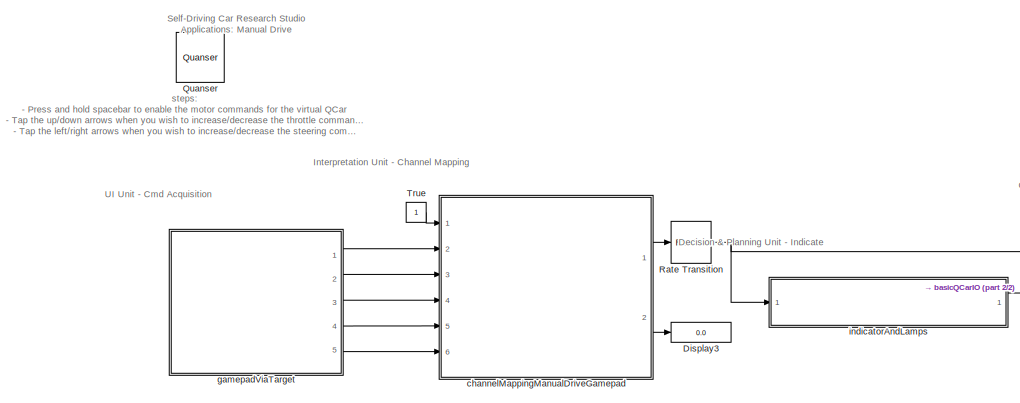
[diagram: root canvas - part 1/2, left side, full height]
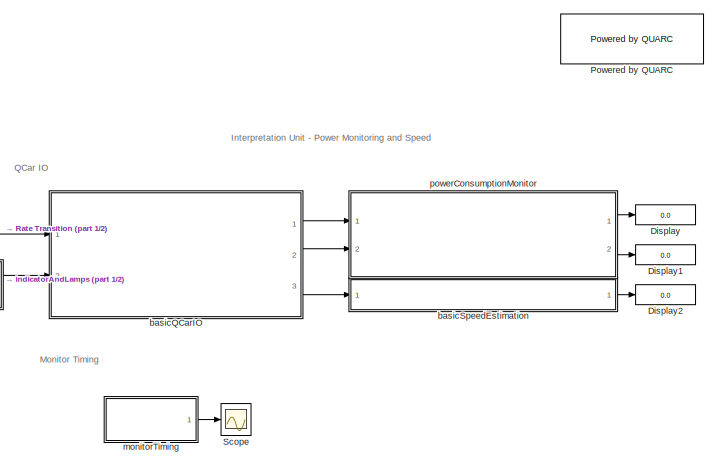
[diagram: root canvas - part 2/2, right side, full height]
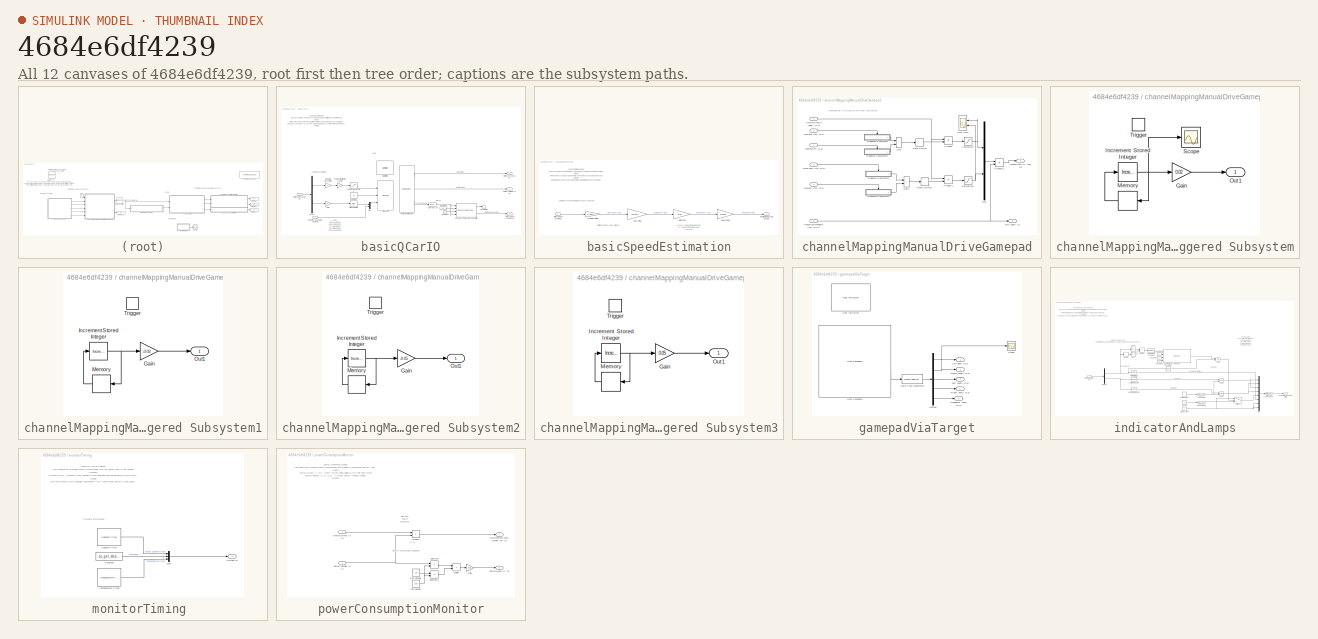
[diagram: thumbnail index - all 12 canvases of the model, root first then tree order]
MODEL slx_4684e6df4239
KIND model
CONFIG AbsTol = auto
CONFIG EnableMultiTasking = on
CONFIG FixedStep = 1/100
CONFIG MaxStep = auto
CONFIG MinStep = auto
CONFIG RelTol = 1e-3
CONFIG SampleTimeConstraint = Unconstrained
CONFIG Solver = ode2
CONFIG SolverName = ode2
CONFIG StartTime = 0.0
CONFIG StopTime = inf
BLOCK [Display] Display
  Decimation = 0.5/qc_get_step_size
  Ports = [1]
BLOCK [Display] Display1
  Decimation = 0.5/qc_get_step_size
  Ports = [1]
BLOCK [Display] Display2
  Decimation = 0.5/qc_get_step_size
  Ports = [1]
BLOCK [Display] Display3
  Decimation = 0.1/qc_get_step_size
  Ports = [1]
BLOCK [Reference] Powered by QUARC  REF=quarc_library/Logos/Powered by QUARC
  Ports = []
  SourceBlock = quarc_library/Logos/Powered by QUARC
  SourceProductName = QUARC Targets
  SourceType = Powered by QUARC
BLOCK [Reference] Quanser  REF=quarc_library/Logos/Quanser
  Ports = []
  SourceBlock = quarc_library/Logos/Quanser
  SourceProductName = QUARC Targets
  SourceType = Powered by Quanser
BLOCK [RateTransition] Rate Transition
BLOCK [Scope] Scope
  Floating = off
  NumInputPorts = 1
  Ports = [1]
  ScopeSpecificationString = Simulink.scopes.TimeScopeBlockCfg('CurrentConfiguration', extmgr.ConfigurationSet(extmgr.Configuration('Core','General UI',true),extmgr.Configuration('Core','Source UI',true),extmgr.Configuration('Sources','WiredSimulink',true),extmgr.Configuration('Visuals','Time Domain',true,'SerializedDisplays',{struct('MinYLimReal','-0.00011','MaxYLimReal','0.00378','YLabelReal','','MinYLimMag','0.00000','MaxY...<+1426ch>
BLOCK [Constant] True
BLOCK [SubSystem] basicQCarIO
  Ports = [2, 3]
BLOCK [Constant] basicQCarIO/Constant1
BLOCK [Constant] basicQCarIO/Constant2
  Value = 25
BLOCK [Demux] basicQCarIO/Demux
  Outputs = 2
  Ports = [1, 2]
BLOCK [Gain] basicQCarIO/Gain
  Gain = -1
BLOCK [Reference] basicQCarIO/HIL Initialize  REF=quarc_library/Data Acquisition/Generic/Configuration/HIL Initialize
  AttributesFormatString = %<object_name> (%<board_type>-%<board_number>)
  Ports = []
  SourceBlock = quarc_library/Data Acquisition/Generic/Configuration/HIL Initialize
  SourceProductName = QUARC Targets
  SourceType = HIL Initialize
  UserDataPersistent = on
BLOCK [Reference] basicQCarIO/HIL Read Timebase  REF=quarc_library/Data Acquisition/Generic/Timebases/HIL Read
Timebase
  AttributesFormatString = (%<object_name>)
  Ports = [0, 3]
  SourceBlock = quarc_library/Data Acquisition/Generic/Timebases/HIL Read\nTimebase
  SourceProductName = QUARC Targets
  SourceType = HIL Read Timebase
  UserDataPersistent = on
BLOCK [Reference] basicQCarIO/HIL Write  REF=quarc_library/Data Acquisition/Generic/Immediate I//O/HIL Write
  AttributesFormatString = (%<object_name>)
  Ports = [3]
  SourceBlock = quarc_library/Data Acquisition/Generic/Immediate I//O/HIL Write
  SourceProductName = QUARC Targets
  SourceType = HIL Write
  UserDataPersistent = on
BLOCK [Mux] basicQCarIO/Mux
  DisplayOption = bar
  Inputs = 2
  Ports = [2, 1]
BLOCK [Reference] basicQCarIO/Second-Order Low-Pass Filter  REF=quarc_library/Continuous/Second-Order
Low-Pass Filter
  Ports = [4, 2]
  SourceBlock = quarc_library/Continuous/Second-Order\nLow-Pass Filter
  SourceProductName = QUARC Targets
  SourceType = Second-Order Low-Pass Filter
BLOCK [Bias] basicQCarIO/Steering Bias
  Bias = 0.0
  SaturateOnIntegerOverflow = off
BLOCK [Terminator] basicQCarIO/Terminator
BLOCK [Reference] basicQCarIO/Unwrap 2^24  REF=quarc_library/Discontinuities/Inverse
Modulus
  Ports = [1, 1]
  SourceBlock = quarc_library/Discontinuities/Inverse\nModulus
  SourceProductName = QUARC Targets
  SourceType = Inverse Modulus
BLOCK [Outport] basicQCarIO/batteryVoltage (V) [1]
  Port = 2
  VectorParamsAs1DForOutWhenUnconnected = off
BLOCK [Constant] basicQCarIO/coast ON
  Value = 0
BLOCK [Saturate] basicQCarIO/command saturation
  LowerLimit = -0.20
  UpperLimit = 0.20
BLOCK [Gain] basicQCarIO/direction convention
  Gain = -1
BLOCK [Inport] basicQCarIO/indicatorAndLamps (bool) [8]
  Port = 2
BLOCK [Inport] basicQCarIO/motorCmd (%, rad) [2]
BLOCK [Outport] basicQCarIO/motorCurrent (A) [1]
  VectorParamsAs1DForOutWhenUnconnected = off
BLOCK [Outport] basicQCarIO/motorSpeed (counts//s) [1]
  Port = 3
  VectorParamsAs1DForOutWhenUnconnected = off
BLOCK [Gain] basicQCarIO/scale output to max range
  Gain = 0.2
BLOCK [SubSystem] basicSpeedEstimation
  Ports = [1, 1]
BLOCK [Gain] basicSpeedEstimation/counts to rotations
  Gain = 1/720/4
BLOCK [Gain] basicSpeedEstimation/gear ratios
  Gain = (13*19)/(70*37)
BLOCK [Outport] basicSpeedEstimation/longitudinalCarSpeed (m//s)
  VectorParamsAs1DForOutWhenUnconnected = off
BLOCK [Inport] basicSpeedEstimation/motorSpeed (counts//s)
BLOCK [Gain] basicSpeedEstimation/rot//s to rad//s
  Gain = 2*pi
BLOCK [Gain] basicSpeedEstimation/wheel radius
  Gain = 0.0342
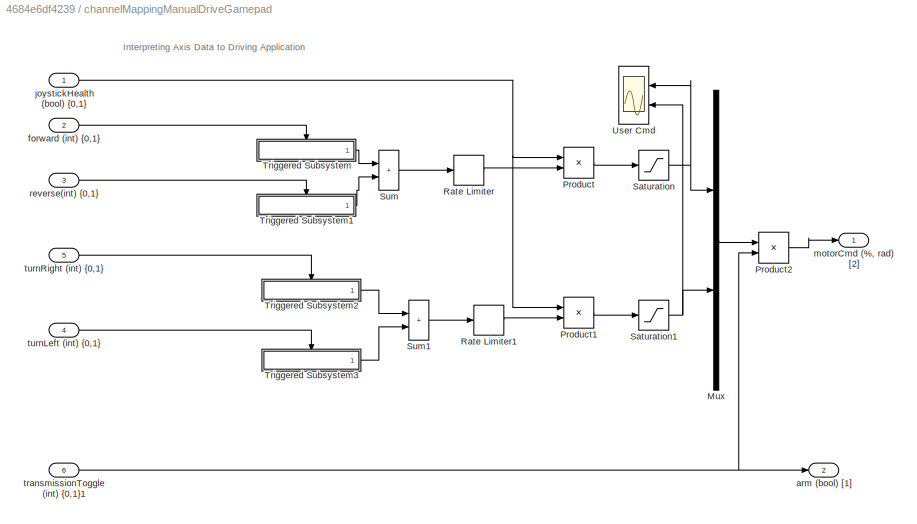
BLOCK [SubSystem] channelMappingManualDriveGamepad
  Ports = [6, 2]
BLOCK [Mux] channelMappingManualDriveGamepad/Mux
  DisplayOption = bar
  Inputs = 2
  Ports = [2, 1]
BLOCK [Product] channelMappingManualDriveGamepad/Product
  Ports = [2, 1]
BLOCK [Product] channelMappingManualDriveGamepad/Product1
  Ports = [2, 1]
BLOCK [Product] channelMappingManualDriveGamepad/Product2
  Ports = [2, 1]
BLOCK [RateLimiter] channelMappingManualDriveGamepad/Rate Limiter
  FallingSlewLimit = -0.2
  RisingSlewLimit = 0.2
  SampleTimeMode = inherited
BLOCK [RateLimiter] channelMappingManualDriveGamepad/Rate Limiter1
  FallingSlewLimit = -0.2
  RisingSlewLimit = 0.2
  SampleTimeMode = inherited
BLOCK [Saturate] channelMappingManualDriveGamepad/Saturation
  LowerLimit = -1
  UpperLimit = 1
BLOCK [Saturate] channelMappingManualDriveGamepad/Saturation1
BLOCK [Sum] channelMappingManualDriveGamepad/Sum
  IconShape = rectangular
  Ports = [2, 1]
BLOCK [Sum] channelMappingManualDriveGamepad/Sum1
  IconShape = rectangular
  Ports = [2, 1]
BLOCK [SubSystem] channelMappingManualDriveGamepad/Triggered Subsystem
  Ports = [0, 1, 0, 1]
  TreatAsAtomicUnit = on
BLOCK [Gain] channelMappingManualDriveGamepad/Triggered Subsystem/Gain
  Gain = 0.02
BLOCK [Reference] channelMappingManualDriveGamepad/Triggered Subsystem/Increment Stored Integer  REF=simulink/Additional Math
& Discrete/Additional Math:
Increment - Decrement/Increment
Stored Integer
  Ports = [1, 1]
  SourceBlock = simulink/Additional Math\n& Discrete/Additional Math:\nIncrement - Decrement/Increment\nStored Integer
  SourceType = Stored Integer Value Increment
BLOCK [Memory] channelMappingManualDriveGamepad/Triggered Subsystem/Memory
  InheritSampleTime = on
BLOCK [Outport] channelMappingManualDriveGamepad/Triggered Subsystem/Out1
BLOCK [Scope] channelMappingManualDriveGamepad/Triggered Subsystem/Scope
  Floating = off
  NumInputPorts = 1
  Ports = [1]
  ScopeSpecificationString = Simulink.scopes.TimeScopeBlockCfg('CurrentConfiguration', extmgr.ConfigurationSet(extmgr.Configuration('Core','General UI',true),extmgr.Configuration('Core','Source UI',true),extmgr.Configuration('Sources','WiredSimulink',true,'DataLoggingVariableName','ScopeData3'),extmgr.Configuration('Visuals','Time Domain',true,'SerializedDisplays',{struct('MinYLimReal','19.75','MaxYLimReal','22.25','YLabelRea...<+1421ch>
BLOCK [TriggerPort] channelMappingManualDriveGamepad/Triggered Subsystem/Trigger
  PortDimensions = 1
  Ports = []
  StatesWhenEnabling = held
  VariantControl = (inherit)
BLOCK [SubSystem] channelMappingManualDriveGamepad/Triggered Subsystem1
  Ports = [0, 1, 0, 1]
  TreatAsAtomicUnit = on
BLOCK [Gain] channelMappingManualDriveGamepad/Triggered Subsystem1/Gain
  Gain = -0.02
BLOCK [Reference] channelMappingManualDriveGamepad/Triggered Subsystem1/Increment Stored Integer  REF=simulink/Additional Math
& Discrete/Additional Math:
Increment - Decrement/Increment
Stored Integer
  Ports = [1, 1]
  SourceBlock = simulink/Additional Math\n& Discrete/Additional Math:\nIncrement - Decrement/Increment\nStored Integer
  SourceType = Stored Integer Value Increment
BLOCK [Memory] channelMappingManualDriveGamepad/Triggered Subsystem1/Memory
  InheritSampleTime = on
BLOCK [Outport] channelMappingManualDriveGamepad/Triggered Subsystem1/Out1
BLOCK [TriggerPort] channelMappingManualDriveGamepad/Triggered Subsystem1/Trigger
  PortDimensions = 1
  Ports = []
  StatesWhenEnabling = held
  VariantControl = (inherit)
BLOCK [SubSystem] channelMappingManualDriveGamepad/Triggered Subsystem2
  Ports = [0, 1, 0, 1]
  TreatAsAtomicUnit = on
BLOCK [Gain] channelMappingManualDriveGamepad/Triggered Subsystem2/Gain
  Gain = -0.05
BLOCK [Reference] channelMappingManualDriveGamepad/Triggered Subsystem2/Increment Stored Integer  REF=simulink/Additional Math
& Discrete/Additional Math:
Increment - Decrement/Increment
Stored Integer
  Ports = [1, 1]
  SourceBlock = simulink/Additional Math\n& Discrete/Additional Math:\nIncrement - Decrement/Increment\nStored Integer
  SourceType = Stored Integer Value Increment
BLOCK [Memory] channelMappingManualDriveGamepad/Triggered Subsystem2/Memory
  InheritSampleTime = on
BLOCK [Outport] channelMappingManualDriveGamepad/Triggered Subsystem2/Out1
BLOCK [TriggerPort] channelMappingManualDriveGamepad/Triggered Subsystem2/Trigger
  PortDimensions = 1
  Ports = []
  StatesWhenEnabling = held
  VariantControl = (inherit)
BLOCK [SubSystem] channelMappingManualDriveGamepad/Triggered Subsystem3
  Ports = [0, 1, 0, 1]
  TreatAsAtomicUnit = on
BLOCK [Gain] channelMappingManualDriveGamepad/Triggered Subsystem3/Gain
  Gain = 0.05
BLOCK [Reference] channelMappingManualDriveGamepad/Triggered Subsystem3/Increment Stored Integer  REF=simulink/Additional Math
& Discrete/Additional Math:
Increment - Decrement/Increment
Stored Integer
  Ports = [1, 1]
  SourceBlock = simulink/Additional Math\n& Discrete/Additional Math:\nIncrement - Decrement/Increment\nStored Integer
  SourceType = Stored Integer Value Increment
BLOCK [Memory] channelMappingManualDriveGamepad/Triggered Subsystem3/Memory
  InheritSampleTime = on
BLOCK [Outport] channelMappingManualDriveGamepad/Triggered Subsystem3/Out1
BLOCK [TriggerPort] channelMappingManualDriveGamepad/Triggered Subsystem3/Trigger
  PortDimensions = 1
  Ports = []
  StatesWhenEnabling = held
  VariantControl = (inherit)
BLOCK [Scope] channelMappingManualDriveGamepad/User Cmd
  Floating = off
  NumInputPorts = 2
  Ports = [2]
  ScopeSpecificationString = Simulink.scopes.TimeScopeBlockCfg('CurrentConfiguration', extmgr.ConfigurationSet(extmgr.Configuration('Core','General UI',true),extmgr.Configuration('Core','Source UI',true),extmgr.Configuration('Sources','WiredSimulink',true,'DataLoggingVariableName','ScopeData1'),extmgr.Configuration('Visuals','Time Domain',true,'SerializedDisplays',{struct('MinYLimReal','-3','MaxYLimReal','3','YLabelReal','%',...<+2060ch>
BLOCK [Outport] channelMappingManualDriveGamepad/arm (bool) [1]
  Port = 2
  VectorParamsAs1DForOutWhenUnconnected = off
BLOCK [Inport] channelMappingManualDriveGamepad/forward (int) {0,1}
  Port = 2
BLOCK [Inport] channelMappingManualDriveGamepad/joystickHealth (bool) {0,1}
BLOCK [Outport] channelMappingManualDriveGamepad/motorCmd (%, rad) [2]
  VectorParamsAs1DForOutWhenUnconnected = off
BLOCK [Inport] channelMappingManualDriveGamepad/reverse(int) {0,1}
  Port = 3
BLOCK [Inport] channelMappingManualDriveGamepad/transmissionToggle (int) {0,1}1
  Port = 6
BLOCK [Inport] channelMappingManualDriveGamepad/turnLeft (int) {0,1}
  Port = 4
BLOCK [Inport] channelMappingManualDriveGamepad/turnRight (int) {0,1}
  Port = 5
BLOCK [SubSystem] gamepadViaTarget
  Ports = [0, 5]
BLOCK [DataTypeConversion] gamepadViaTarget/Data Type Conversion
  OutDataTypeStr = double
  RndMeth = Floor
  SaturateOnIntegerOverflow = off
BLOCK [Demux] gamepadViaTarget/Demux
  Outputs = 5
  Ports = [1, 5]
BLOCK [Outport] gamepadViaTarget/Down  (bool) {0,1}
  Port = 2
  VectorParamsAs1DForOutWhenUnconnected = off
BLOCK [Reference] gamepadViaTarget/Host Initialize  REF=quarc_library/Devices/Peripherals/Host/Host Initialize
  Ports = [0, 2]
  SourceBlock = quarc_library/Devices/Peripherals/Host/Host Initialize
  SourceProductName = QUARC Targets
  SourceType = Host Initialize
BLOCK [Reference] gamepadViaTarget/Host Keyboard  REF=quarc_library/Devices/Peripherals/Host/Host Keyboard
  Ports = [0, 2]
  SourceBlock = quarc_library/Devices/Peripherals/Host/Host Keyboard
  SourceProductName = QUARC Targets
  SourceType = Host Keyboard
BLOCK [Outport] gamepadViaTarget/Left (bool) {0,1}
  Port = 3
  VectorParamsAs1DForOutWhenUnconnected = off
BLOCK [Outport] gamepadViaTarget/Right (bool) {0,1}
  Port = 4
  VectorParamsAs1DForOutWhenUnconnected = off
BLOCK [Scope] gamepadViaTarget/Scope
  Floating = off
  NumInputPorts = 1
  Ports = [1]
  ScopeSpecificationString = Simulink.scopes.TimeScopeBlockCfg('CurrentConfiguration', extmgr.ConfigurationSet(extmgr.Configuration('Core','General UI',true),extmgr.Configuration('Core','Source UI',true),extmgr.Configuration('Sources','WiredSimulink',true,'DataLoggingVariableName','ScopeData1'),extmgr.Configuration('Visuals','Time Domain',true,'SerializedDisplays',{struct('MinYLimReal','-1.00000','MaxYLimReal','1.00000','YLab...<+1401ch>
BLOCK [Outport] gamepadViaTarget/SpaceBar (bool) {0,1}
  Port = 5
  VectorParamsAs1DForOutWhenUnconnected = off
BLOCK [Outport] gamepadViaTarget/Up (bool) {0,1}
  VectorParamsAs1DForOutWhenUnconnected = off
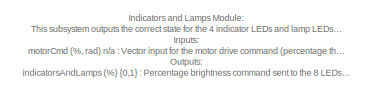
[diagram: indicatorAndLamps - part 1/2, top left region]
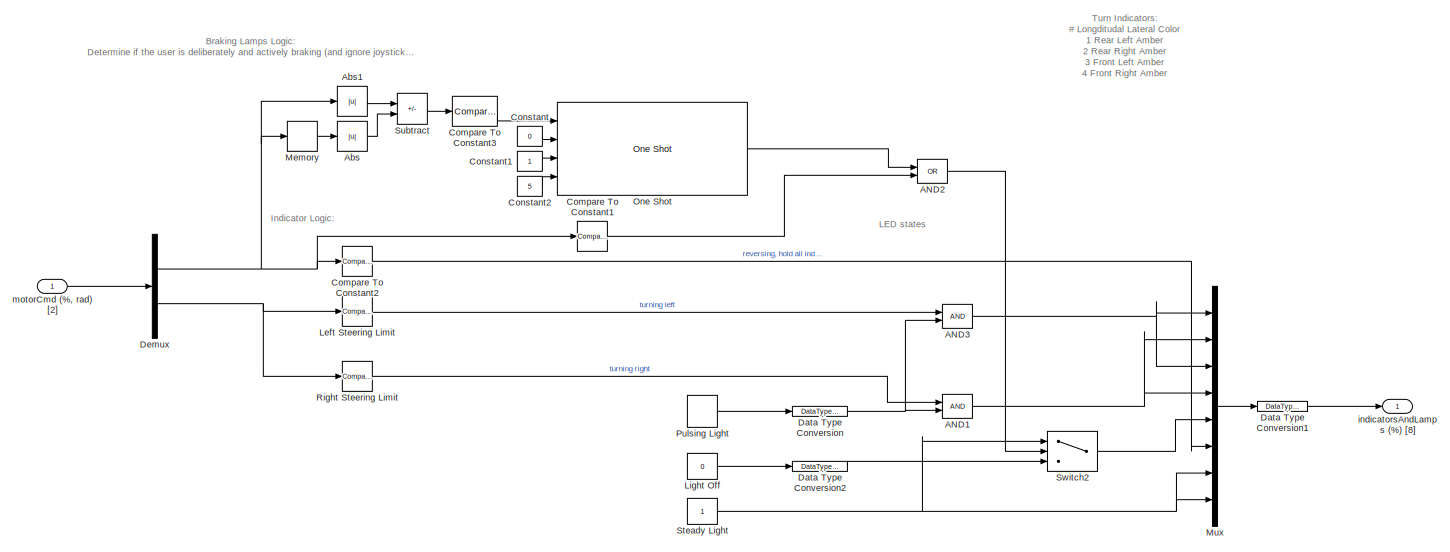
[diagram: indicatorAndLamps - part 2/2, full width, middle band]
BLOCK [SubSystem] indicatorAndLamps
  Ports = [1, 1]
BLOCK [Logic] indicatorAndLamps/AND1
  AllPortsSameDT = off
  IconShape = distinctive
  OutDataTypeStr = boolean
  Ports = [2, 1]
BLOCK [Logic] indicatorAndLamps/AND2
  AllPortsSameDT = off
  IconShape = distinctive
  Operator = OR
  OutDataTypeStr = boolean
  Ports = [2, 1]
BLOCK [Logic] indicatorAndLamps/AND3
  AllPortsSameDT = off
  IconShape = distinctive
  OutDataTypeStr = boolean
  Ports = [2, 1]
BLOCK [Abs] indicatorAndLamps/Abs
  SaturateOnIntegerOverflow = off
BLOCK [Abs] indicatorAndLamps/Abs1
  SaturateOnIntegerOverflow = off
BLOCK [Reference] indicatorAndLamps/Compare To Constant1  REF=simulink/Logic and Bit
Operations/Compare
To Constant
  Ports = [1, 1]
  SourceBlock = simulink/Logic and Bit\nOperations/Compare\nTo Constant
  SourceType = Compare To Constant
BLOCK [Reference] indicatorAndLamps/Compare To Constant2  REF=simulink/Logic and Bit
Operations/Compare
To Constant
  Ports = [1, 1]
  SourceBlock = simulink/Logic and Bit\nOperations/Compare\nTo Constant
  SourceType = Compare To Constant
BLOCK [Reference] indicatorAndLamps/Compare To Constant3  REF=simulink/Logic and Bit
Operations/Compare
To Constant
  Ports = [1, 1]
  SourceBlock = simulink/Logic and Bit\nOperations/Compare\nTo Constant
  SourceType = Compare To Constant
BLOCK [Constant] indicatorAndLamps/Constant
  Value = 0
BLOCK [Constant] indicatorAndLamps/Constant1
BLOCK [Constant] indicatorAndLamps/Constant2
  Value = 5
BLOCK [DataTypeConversion] indicatorAndLamps/Data Type Conversion
  RndMeth = Floor
  SaturateOnIntegerOverflow = off
BLOCK [DataTypeConversion] indicatorAndLamps/Data Type Conversion1
  RndMeth = Floor
  SaturateOnIntegerOverflow = off
BLOCK [DataTypeConversion] indicatorAndLamps/Data Type Conversion2
  RndMeth = Floor
  SaturateOnIntegerOverflow = off
BLOCK [Demux] indicatorAndLamps/Demux
  Outputs = 2
  Ports = [1, 2]
BLOCK [Reference] indicatorAndLamps/Left Steering Limit  REF=simulink/Logic and Bit
Operations/Compare
To Constant
  Ports = [1, 1]
  SourceBlock = simulink/Logic and Bit\nOperations/Compare\nTo Constant
  SourceType = Compare To Constant
BLOCK [Constant] indicatorAndLamps/Light Off
  OutDataTypeStr = boolean
  Value = 0
BLOCK [Memory] indicatorAndLamps/Memory
BLOCK [Mux] indicatorAndLamps/Mux
  DisplayOption = bar
  Inputs = 8
  Ports = [8, 1]
BLOCK [Reference] indicatorAndLamps/One Shot  REF=quarc_library/Discontinuities/One Shot
  Ports = [4, 1]
  SourceBlock = quarc_library/Discontinuities/One Shot
  SourceProductName = QUARC Targets
  SourceType = One Shot
BLOCK [DiscretePulseGenerator] indicatorAndLamps/Pulsing Light
  Period = 0.5/qc_get_step_size
  Ports = [0, 1]
  PulseWidth = 0.5/2/qc_get_step_size
  SampleTime = qc_get_step_size
BLOCK [Reference] indicatorAndLamps/Right Steering Limit  REF=simulink/Logic and Bit
Operations/Compare
To Constant
  Ports = [1, 1]
  SourceBlock = simulink/Logic and Bit\nOperations/Compare\nTo Constant
  SourceType = Compare To Constant
BLOCK [Constant] indicatorAndLamps/Steady Light
  OutDataTypeStr = boolean
BLOCK [Sum] indicatorAndLamps/Subtract
  IconShape = rectangular
  Inputs = +-
  Ports = [2, 1]
BLOCK [Switch] indicatorAndLamps/Switch2
  Criteria = u2 > Threshold
  InputSameDT = off
  SaturateOnIntegerOverflow = off
BLOCK [Outport] indicatorAndLamps/indicatorsAndLamps (%) [8]
  VectorParamsAs1DForOutWhenUnconnected = off
BLOCK [Inport] indicatorAndLamps/motorCmd (%, rad) [2]
BLOCK [SubSystem] monitorTiming 
  Ports = [0, 1]
BLOCK [Reference] monitorTiming /Computation Time  REF=quarc_library/Sources/Time/Computation Time
  Ports = [0, 1]
  SourceBlock = quarc_library/Sources/Time/Computation Time
  SourceProductName = QUARC Targets
  SourceType = Computation Time
BLOCK [Constant] monitorTiming /Constant
  Value = qc_get_step_size
BLOCK [Mux] monitorTiming /Mux
  DisplayOption = bar
  Inputs = 3
  Ports = [3, 1]
BLOCK [Reference] monitorTiming /Sample Time  REF=quarc_library/Sources/Time/Sample Time
  Ports = [0, 1]
  Priority = -99
  SourceBlock = quarc_library/Sources/Time/Sample Time
  SourceProductName = QUARC Targets
  SourceType = Sample Time
BLOCK [Outport] monitorTiming /timing (s)
  VectorParamsAs1DForOutWhenUnconnected = off
BLOCK [SubSystem] powerConsumptionMonitor
  Ports = [2, 2]
BLOCK [Product] powerConsumptionMonitor/Divide
  Inputs = */
  Ports = [2, 1]
BLOCK [Gain] powerConsumptionMonitor/Gain
  Gain = 100
BLOCK [Product] powerConsumptionMonitor/Product
  Ports = [2, 1]
BLOCK [Sum] powerConsumptionMonitor/Subtract
  IconShape = rectangular
  Inputs = +-
  Ports = [2, 1]
BLOCK [Sum] powerConsumptionMonitor/Subtract1
  IconShape = rectangular
  Inputs = +-
  Ports = [2, 1]
BLOCK [Outport] powerConsumptionMonitor/batteryLevel (%) [1]
  Port = 2
  VectorParamsAs1DForOutWhenUnconnected = off
BLOCK [Inport] powerConsumptionMonitor/batteryVoltage (V) [1]
  Port = 2
BLOCK [Constant] powerConsumptionMonitor/max voltage
  Value = 12.6
BLOCK [Constant] powerConsumptionMonitor/min voltage
  Value = 10.5
BLOCK [Inport] powerConsumptionMonitor/motorCurrent (A) [1]
BLOCK [Outport] powerConsumptionMonitor/motorPowerConsumption (W) [1]
  VectorParamsAs1DForOutWhenUnconnected = off
ANNOTATION (root): Self-Driving Car Research Studio Applications: Manual Drive
ANNOTATION (root): Decision & Planning Unit - Indicate
ANNOTATION (root): Interpretation Unit - Channel Mapping
ANNOTATION (root): Interpretation Unit - Power Monitoring and Speed
ANNOTATION (root): Monitor Timing
ANNOTATION (root): QCar IO
ANNOTATION (root): UI Unit - Cmd Acquisition
ANNOTATION (root): steps: - Press and hold spacebar to enable the motor commands for the virtual QCar - Tap the up/down arrows when you wish to increase/decrease the throttle command - Tap the left/right arrows when you wish to increase/decrease the steering commands
ANNOTATION basicQCarIO: basicQCarIO Module: This subsystem provides the core and basic I/O capabilities to read data from and write data to the QCar platform. The HIL Initialize block configures the IO settings, and the HIL Write and Read blocks are used for the actual IO. Inputs: motorCmd (%, rad) n/a : Vector input for the motor drive command (percentage throttle) as well as steering command (in rad) indicatorsAndLamps...<+373ch>
ANNOTATION basicQCarIO: LEDs: 1. Back Left Amber 2. Back Right Amber 3. Front Left Amber 4. Front Right Amber 5. Brake Lights Red 6. Reverse White 7. Left Headlamps White 8. Right Headlamps White
ANNOTATION basicQCarIO: Command Conditioning
ANNOTATION basicQCarIO: Filtering
ANNOTATION basicQCarIO: HIL I/O
ANNOTATION basicSpeedEstimation: (Diff. pinion*pinion)/(Spur*Diff. spur)
ANNOTATION basicSpeedEstimation: speedEstimation Module: This subsystem converts the motor speed measurements in counts/s to a useful longitudinal car speed in m/s. Inputs: motorSpeed (counts/s) n/a : Drive motor speed measured using an encoder Outputs: longitudinalCarSpeed (m/s) n/a : The platform's longitudinal speed (along the front-rear axis direction)
ANNOTATION basicSpeedEstimation: Estimate car speed from motor encoder counts rate
ANNOTATION basicSpeedEstimation: v = 2*pi*r * omega (if omega is in rot/s) v = r * omega (if omega is in rad/s) r = 0.0342 m
ANNOTATION channelMappingManualDriveGamepad: Interpreting Axis Data to Driving Application
ANNOTATION indicatorAndLamps: Indicators and Lamps Module: This subsystem outputs the correct state for the 4 indicator LEDs and lamp LEDs based on the motor drive and steering commands for the QCar platform. Inputs: motorCmd (%, rad) n/a : Vector input for the motor drive command (percentage throttle) as well as steering command (in rad) Outputs: indicatorsAndLamps (%) {0,1} : Percentage brightness command sent to the 8 LEDs ...<+388ch>
ANNOTATION indicatorAndLamps: Turn Indicators: # Longditudal Lateral Color 1 Rear Left Amber 2 Rear Right Amber 3 Front Left Amber 4 Front Right Amber Lamps: # Longditudal Lateral Color 5 Rear Left Red 6 Rear Right Red 7 Front Left White 8 Front Right White
ANNOTATION indicatorAndLamps: Braking Lamps Logic: Determine if the user is deliberately and actively braking (and ignore joystick jitter and noise)
ANNOTATION indicatorAndLamps: Indicator Logic:
ANNOTATION indicatorAndLamps: LED states
ANNOTATION monitorTiming : monitorTiming Module: This subsystem provides three timing signals for any given rate in your model. Outputs: timing (s) n/a : Sample time, sample time reference and computation time in seconds. Usage: Set the 'Sample time (seconds)' parameter in all three blocks below to the same number. This will provide the actual sample time at each time step, the reference sample time that is being targeted a...<+103ch>
ANNOTATION monitorTiming : Timing Performance
ANNOTATION powerConsumptionMonitor: Power Monitoring Module: This subsystem monitors power consumption and provides a percentage battery remaining indicator. Inputs: motorCurrent (A) n/a : Motor current being pulled by the main drive motor batteryVoltage (V) {0, 12.6} : Current battery voltage reading Outputs: motorPowerConsumption (W) n/a : Current power in Watts being pulled by the main drive motor batteryLevel (%) {0,1} : Percent...<+144ch>
ANNOTATION powerConsumptionMonitor: Battery percentage calculation
ANNOTATION powerConsumptionMonitor: Electrical power consumed
ANNOTATION powerConsumptionMonitor: P = VI
NET Rate Transition:1 -> basicQCarIO:1, indicatorAndLamps:1
LINE True:1 -> channelMappingManualDriveGamepad:1
LINE basicQCarIO/Constant1:1 -> basicQCarIO/Second-Order Low-Pass Filter:3
LINE basicQCarIO/Constant2:1 -> basicQCarIO/Second-Order Low-Pass Filter:2
LINE basicQCarIO/Demux:1 -> basicQCarIO/direction convention:1
LINE basicQCarIO/Demux:2 -> basicQCarIO/Gain:1
LINE basicQCarIO/Gain:1 -> basicQCarIO/Steering Bias:1
LINE basicQCarIO/HIL Read Timebase:1 -> basicQCarIO/motorCurrent (A) [1]:1
LINE basicQCarIO/HIL Read Timebase:2 -> basicQCarIO/batteryVoltage (V) [1]:1
LINE basicQCarIO/HIL Read Timebase:3 -> basicQCarIO/Unwrap 2^24:1
LINE basicQCarIO/Mux:1 -> basicQCarIO/HIL Write:3
LINE basicQCarIO/Second-Order Low-Pass Filter:1 -> basicQCarIO/Terminator:1
LINE basicQCarIO/Second-Order Low-Pass Filter:2 -> basicQCarIO/motorSpeed (counts//s) [1]:1
LINE basicQCarIO/Steering Bias:1 -> basicQCarIO/Mux:1
NET basicQCarIO/Unwrap 2^24:1 -> basicQCarIO/Second-Order Low-Pass Filter:1, basicQCarIO/Second-Order Low-Pass Filter:4
LINE basicQCarIO/coast ON:1 -> basicQCarIO/HIL Write:2
LINE basicQCarIO/command saturation:1 -> basicQCarIO/HIL Write:1
LINE basicQCarIO/direction convention:1 -> basicQCarIO/scale output to max range:1
LINE basicQCarIO/indicatorAndLamps (bool) [8]:1 -> basicQCarIO/Mux:2
LINE basicQCarIO/motorCmd (%, rad) [2]:1 -> basicQCarIO/Demux:1
LINE basicQCarIO/scale output to max range:1 -> basicQCarIO/command saturation:1
LINE basicQCarIO:1 -> powerConsumptionMonitor:1
LINE basicQCarIO:2 -> powerConsumptionMonitor:2
LINE basicQCarIO:3 -> basicSpeedEstimation:1
LINE basicSpeedEstimation/counts to rotations:1 -> basicSpeedEstimation/gear ratios:1
LINE basicSpeedEstimation/gear ratios:1 -> basicSpeedEstimation/rot//s to rad//s:1
LINE basicSpeedEstimation/motorSpeed (counts//s):1 -> basicSpeedEstimation/counts to rotations:1
LINE basicSpeedEstimation/rot//s to rad//s:1 -> basicSpeedEstimation/wheel radius:1
LINE basicSpeedEstimation/wheel radius:1 -> basicSpeedEstimation/longitudinalCarSpeed (m//s):1
LINE basicSpeedEstimation:1 -> Display2:1
LINE channelMappingManualDriveGamepad/Mux:1 -> channelMappingManualDriveGamepad/Product2:1
LINE channelMappingManualDriveGamepad/Product1:1 -> channelMappingManualDriveGamepad/Saturation1:1
LINE channelMappingManualDriveGamepad/Product2:1 -> channelMappingManualDriveGamepad/motorCmd (%, rad) [2]:1
LINE channelMappingManualDriveGamepad/Product:1 -> channelMappingManualDriveGamepad/Saturation:1
LINE channelMappingManualDriveGamepad/Rate Limiter1:1 -> channelMappingManualDriveGamepad/Product1:2
LINE channelMappingManualDriveGamepad/Rate Limiter:1 -> channelMappingManualDriveGamepad/Product:2
NET channelMappingManualDriveGamepad/Saturation1:1 -> channelMappingManualDriveGamepad/Mux:2, channelMappingManualDriveGamepad/User Cmd:2
NET channelMappingManualDriveGamepad/Saturation:1 -> channelMappingManualDriveGamepad/Mux:1, channelMappingManualDriveGamepad/User Cmd:1
LINE channelMappingManualDriveGamepad/Sum1:1 -> channelMappingManualDriveGamepad/Rate Limiter1:1
LINE channelMappingManualDriveGamepad/Sum:1 -> channelMappingManualDriveGamepad/Rate Limiter:1
LINE channelMappingManualDriveGamepad/Triggered Subsystem/Gain:1 -> channelMappingManualDriveGamepad/Triggered Subsystem/Out1:1
NET channelMappingManualDriveGamepad/Triggered Subsystem/Increment Stored Integer:1 -> channelMappingManualDriveGamepad/Triggered Subsystem/Gain:1, channelMappingManualDriveGamepad/Triggered Subsystem/Memory:1, channelMappingManualDriveGamepad/Triggered Subsystem/Scope:1
LINE channelMappingManualDriveGamepad/Triggered Subsystem/Memory:1 -> channelMappingManualDriveGamepad/Triggered Subsystem/Increment Stored Integer:1
LINE channelMappingManualDriveGamepad/Triggered Subsystem1/Gain:1 -> channelMappingManualDriveGamepad/Triggered Subsystem1/Out1:1
NET channelMappingManualDriveGamepad/Triggered Subsystem1/Increment Stored Integer:1 -> channelMappingManualDriveGamepad/Triggered Subsystem1/Gain:1, channelMappingManualDriveGamepad/Triggered Subsystem1/Memory:1
LINE channelMappingManualDriveGamepad/Triggered Subsystem1/Memory:1 -> channelMappingManualDriveGamepad/Triggered Subsystem1/Increment Stored Integer:1
LINE channelMappingManualDriveGamepad/Triggered Subsystem1:1 -> channelMappingManualDriveGamepad/Sum:2
LINE channelMappingManualDriveGamepad/Triggered Subsystem2/Gain:1 -> channelMappingManualDriveGamepad/Triggered Subsystem2/Out1:1
NET channelMappingManualDriveGamepad/Triggered Subsystem2/Increment Stored Integer:1 -> channelMappingManualDriveGamepad/Triggered Subsystem2/Gain:1, channelMappingManualDriveGamepad/Triggered Subsystem2/Memory:1
LINE channelMappingManualDriveGamepad/Triggered Subsystem2/Memory:1 -> channelMappingManualDriveGamepad/Triggered Subsystem2/Increment Stored Integer:1
LINE channelMappingManualDriveGamepad/Triggered Subsystem2:1 -> channelMappingManualDriveGamepad/Sum1:1
LINE channelMappingManualDriveGamepad/Triggered Subsystem3/Gain:1 -> channelMappingManualDriveGamepad/Triggered Subsystem3/Out1:1
NET channelMappingManualDriveGamepad/Triggered Subsystem3/Increment Stored Integer:1 -> channelMappingManualDriveGamepad/Triggered Subsystem3/Gain:1, channelMappingManualDriveGamepad/Triggered Subsystem3/Memory:1
LINE channelMappingManualDriveGamepad/Triggered Subsystem3/Memory:1 -> channelMappingManualDriveGamepad/Triggered Subsystem3/Increment Stored Integer:1
LINE channelMappingManualDriveGamepad/Triggered Subsystem3:1 -> channelMappingManualDriveGamepad/Sum1:2
LINE channelMappingManualDriveGamepad/Triggered Subsystem:1 -> channelMappingManualDriveGamepad/Sum:1
LINE channelMappingManualDriveGamepad/forward (int) {0,1}:1 -> channelMappingManualDriveGamepad/Triggered Subsystem:trigger
NET channelMappingManualDriveGamepad/joystickHealth (bool) {0,1}:1 -> channelMappingManualDriveGamepad/Product1:1, channelMappingManualDriveGamepad/Product:1
LINE channelMappingManualDriveGamepad/reverse(int) {0,1}:1 -> channelMappingManualDriveGamepad/Triggered Subsystem1:trigger
NET channelMappingManualDriveGamepad/transmissionToggle (int) {0,1}1:1 -> channelMappingManualDriveGamepad/Product2:2, channelMappingManualDriveGamepad/arm (bool) [1]:1
LINE channelMappingManualDriveGamepad/turnLeft (int) {0,1}:1 -> channelMappingManualDriveGamepad/Triggered Subsystem3:trigger
LINE channelMappingManualDriveGamepad/turnRight (int) {0,1}:1 -> channelMappingManualDriveGamepad/Triggered Subsystem2:trigger
LINE channelMappingManualDriveGamepad:1 -> Rate Transition:1
LINE channelMappingManualDriveGamepad:2 -> Display3:1
LINE gamepadViaTarget/Data Type Conversion:1 -> gamepadViaTarget/Demux:1
LINE gamepadViaTarget/Demux:1 -> gamepadViaTarget/Up (bool) {0,1}:1
NET gamepadViaTarget/Demux:2 -> gamepadViaTarget/Down  (bool) {0,1}:1, gamepadViaTarget/Scope:1
LINE gamepadViaTarget/Demux:3 -> gamepadViaTarget/Left (bool) {0,1}:1
LINE gamepadViaTarget/Demux:4 -> gamepadViaTarget/Right (bool) {0,1}:1
LINE gamepadViaTarget/Demux:5 -> gamepadViaTarget/SpaceBar (bool) {0,1}:1
LINE gamepadViaTarget/Host Keyboard:2 -> gamepadViaTarget/Data Type Conversion:1
LINE gamepadViaTarget:1 -> channelMappingManualDriveGamepad:2
LINE gamepadViaTarget:2 -> channelMappingManualDriveGamepad:3
LINE gamepadViaTarget:3 -> channelMappingManualDriveGamepad:4
LINE gamepadViaTarget:4 -> channelMappingManualDriveGamepad:5
LINE gamepadViaTarget:5 -> channelMappingManualDriveGamepad:6
NET indicatorAndLamps/AND1:1 -> indicatorAndLamps/Mux:2, indicatorAndLamps/Mux:4
LINE indicatorAndLamps/AND2:1 -> indicatorAndLamps/Switch2:2
NET indicatorAndLamps/AND3:1 -> indicatorAndLamps/Mux:1, indicatorAndLamps/Mux:3
LINE indicatorAndLamps/Abs1:1 -> indicatorAndLamps/Subtract:1
LINE indicatorAndLamps/Abs:1 -> indicatorAndLamps/Subtract:2
LINE indicatorAndLamps/Compare To Constant1:1 -> indicatorAndLamps/AND2:2
LINE indicatorAndLamps/Compare To Constant2:1 -> indicatorAndLamps/Mux:6
LINE indicatorAndLamps/Compare To Constant3:1 -> indicatorAndLamps/One Shot:1
LINE indicatorAndLamps/Constant1:1 -> indicatorAndLamps/One Shot:3
LINE indicatorAndLamps/Constant2:1 -> indicatorAndLamps/One Shot:4
LINE indicatorAndLamps/Constant:1 -> indicatorAndLamps/One Shot:2
LINE indicatorAndLamps/Data Type Conversion1:1 -> indicatorAndLamps/indicatorsAndLamps (%) [8]:1
LINE indicatorAndLamps/Data Type Conversion2:1 -> indicatorAndLamps/Switch2:3
NET indicatorAndLamps/Data Type Conversion:1 -> indicatorAndLamps/AND1:2, indicatorAndLamps/AND3:2
NET indicatorAndLamps/Demux:1 -> indicatorAndLamps/Abs1:1, indicatorAndLamps/Compare To Constant1:1, indicatorAndLamps/Compare To Constant2:1, indicatorAndLamps/Memory:1
NET indicatorAndLamps/Demux:2 -> indicatorAndLamps/Left Steering Limit:1, indicatorAndLamps/Right Steering Limit:1
LINE indicatorAndLamps/Left Steering Limit:1 -> indicatorAndLamps/AND3:1
LINE indicatorAndLamps/Light Off:1 -> indicatorAndLamps/Data Type Conversion2:1
LINE indicatorAndLamps/Memory:1 -> indicatorAndLamps/Abs:1
LINE indicatorAndLamps/Mux:1 -> indicatorAndLamps/Data Type Conversion1:1
LINE indicatorAndLamps/One Shot:1 -> indicatorAndLamps/AND2:1
LINE indicatorAndLamps/Pulsing Light:1 -> indicatorAndLamps/Data Type Conversion:1
LINE indicatorAndLamps/Right Steering Limit:1 -> indicatorAndLamps/AND1:1
NET indicatorAndLamps/Steady Light:1 -> indicatorAndLamps/Mux:7, indicatorAndLamps/Mux:8, indicatorAndLamps/Switch2:1
LINE indicatorAndLamps/Subtract:1 -> indicatorAndLamps/Compare To Constant3:1
LINE indicatorAndLamps/Switch2:1 -> indicatorAndLamps/Mux:5
LINE indicatorAndLamps/motorCmd (%, rad) [2]:1 -> indicatorAndLamps/Demux:1
LINE indicatorAndLamps:1 -> basicQCarIO:2
LINE monitorTiming /Computation Time:1 -> monitorTiming /Mux:3
LINE monitorTiming /Constant:1 -> monitorTiming /Mux:2
LINE monitorTiming /Mux:1 -> monitorTiming /timing (s):1
LINE monitorTiming /Sample Time:1 -> monitorTiming /Mux:1
LINE monitorTiming :1 -> Scope:1
LINE powerConsumptionMonitor/Divide:1 -> powerConsumptionMonitor/Gain:1
LINE powerConsumptionMonitor/Gain:1 -> powerConsumptionMonitor/batteryLevel (%) [1]:1
LINE powerConsumptionMonitor/Product:1 -> powerConsumptionMonitor/motorPowerConsumption (W) [1]:1
LINE powerConsumptionMonitor/Subtract1:1 -> powerConsumptionMonitor/Divide:2
LINE powerConsumptionMonitor/Subtract:1 -> powerConsumptionMonitor/Divide:1
NET powerConsumptionMonitor/batteryVoltage (V) [1]:1 -> powerConsumptionMonitor/Product:2, powerConsumptionMonitor/Subtract:1
LINE powerConsumptionMonitor/max voltage:1 -> powerConsumptionMonitor/Subtract1:1
NET powerConsumptionMonitor/min voltage:1 -> powerConsumptionMonitor/Subtract1:2, powerConsumptionMonitor/Subtract:2
LINE powerConsumptionMonitor/motorCurrent (A) [1]:1 -> powerConsumptionMonitor/Product:1
LINE powerConsumptionMonitor:1 -> Display:1
LINE powerConsumptionMonitor:2 -> Display1:1
note: NET lines group one-source signal fan-out (src -> all destinations, sorted); 1:1 wires keep LINE
